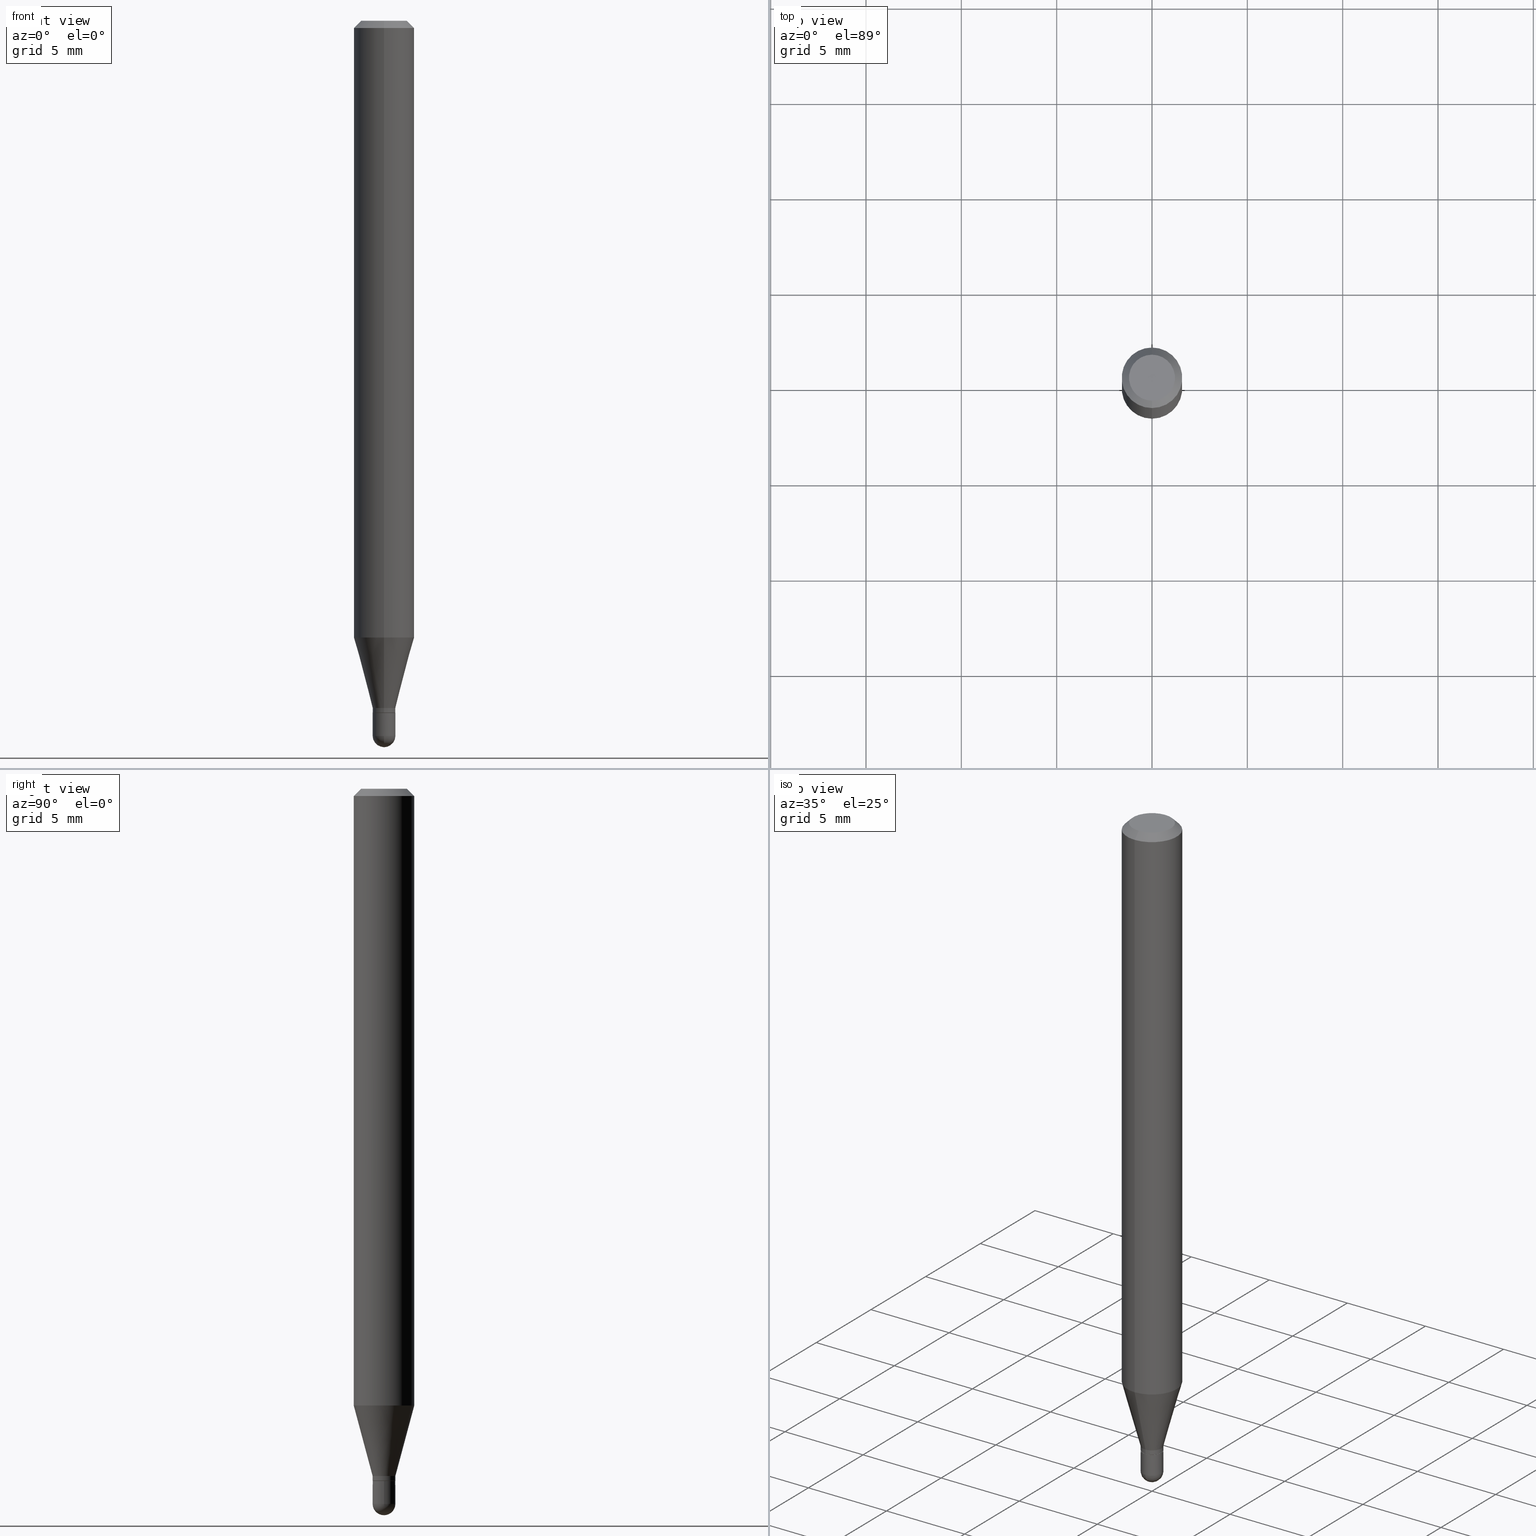
[diagram: canonical four-view strip — front | top / right | iso, engineering-drawing reading convention]
A machine part, canonical four-view strip (front | top / right | iso — engineering-drawing reading convention). The complete STEP part file that produces these views, byte-faithful:
ISO-10303-21;
HEADER;
FILE_DESCRIPTION (( 'STEP AP203' ),
    '1' );
FILE_NAME ('02510.STEP',
    '2024-03-07T20:10:09',
    ( '' ),
    ( '' ),
    'SwSTEP 2.0',
    'SolidWorks 2023',
    '' );
FILE_SCHEMA (( 'CONFIG_CONTROL_DESIGN' ));
ENDSEC;

DATA;
#1 = CARTESIAN_POINT ( 'NONE',  ( 3.494567961384858220E-29, -4.989336804123248668E-15, -1.429000000000000270 ) ) ;
#2 = CONICAL_SURFACE ( 'NONE', #488, 0.06250000000000000000, 0.7853981633974483900 ) ;
#3 = LOCAL_TIME ( 15, 10, 9.000000000000000000, #262 ) ;
#4 = CARTESIAN_POINT ( 'NONE',  ( 3.494567961384858220E-29, -4.989336804123248668E-15, -1.429000000000000270 ) ) ;
#5 = LINE ( 'NONE', #370, #29 ) ;
#6 = DIRECTION ( 'NONE',  ( -6.982962677686266711E-15, -1.000000000000000000, 3.491488316391355955E-15 ) ) ;
#7 = CYLINDRICAL_SURFACE ( 'NONE', #269, 0.02349999999999992373 ) ;
#8 = ORIENTED_EDGE ( 'NONE', *, *, #299, .F. ) ;
#9 = DIRECTION ( 'NONE',  ( -6.982962677686265922E-15, -1.000000000000000000, 3.491488316391355561E-15 ) ) ;
#10 = VERTEX_POINT ( 'NONE', #434 ) ;
#11 = PRODUCT ( '02510', '02510', '', ( #279 ) ) ;
#12 = VERTEX_POINT ( 'NONE', #70 ) ;
#13 = CARTESIAN_POINT ( 'NONE',  ( 0.02350000000000000352, -5.153426456132483639E-15, -1.429000000000000270 ) ) ;
#14 = ORIENTED_EDGE ( 'NONE', *, *, #338, .F. ) ;
#15 = DATE_AND_TIME ( #196, #472 ) ;
#16 = ORIENTED_EDGE ( 'NONE', *, *, #120, .T. ) ;
#17 = FACE_OUTER_BOUND ( 'NONE', #178, .T. ) ;
#18 = AXIS2_PLACEMENT_3D ( 'NONE', #425, #57, #349 ) ;
#19 = ORGANIZATION ( 'UNSPECIFIED', 'UNSPECIFIED', '' ) ;
#20 = DATE_AND_TIME ( #321, #248 ) ;
#21 = ORIENTED_EDGE ( 'NONE', *, *, #40, .F. ) ;
#22 = DIRECTION ( 'NONE',  ( -2.445463933789263379E-29, 3.491488316391355561E-15, 1.000000000000000000 ) ) ;
#23 = ORIENTED_EDGE ( 'NONE', *, *, #301, .F. ) ;
#24 = ORIENTED_EDGE ( 'NONE', *, *, #41, .F. ) ;
#25 = ORIENTED_EDGE ( 'NONE', *, *, #244, .T. ) ;
#26 = SPHERICAL_SURFACE ( 'NONE', #72, 0.02350000000000008679 ) ;
#27 = AXIS2_PLACEMENT_3D ( 'NONE', #334, #444, #42 ) ;
#28 = CC_DESIGN_PERSON_AND_ORGANIZATION_ASSIGNMENT ( #157, #220, ( #82 ) ) ;
#29 = VECTOR ( 'NONE', #366, 39.37007874015748143 ) ;
#30 = EDGE_LOOP ( 'NONE', ( #431, #331 ) ) ;
#31 = FACE_OUTER_BOUND ( 'NONE', #197, .T. ) ;
#32 = APPLICATION_PROTOCOL_DEFINITION ( 'international standard', 'config_control_design', 1994, #372 ) ;
#33 = VERTEX_POINT ( 'NONE', #394 ) ;
#34 = FACE_OUTER_BOUND ( 'NONE', #509, .T. ) ;
#35 = PERSON_AND_ORGANIZATION ( #463, #19 ) ;
#36 = PERSON_AND_ORGANIZATION ( #463, #19 ) ;
#37 = AXIS2_PLACEMENT_3D ( 'NONE', #442, #413, #484 ) ;
#38 = AXIS2_PLACEMENT_3D ( 'NONE', #206, #88, #9 ) ;
#39 = APPROVAL_PERSON_ORGANIZATION ( #36, #354, #397 ) ;
#40 = EDGE_CURVE ( 'NONE', #33, #274, #79, .T. ) ;
#41 = EDGE_CURVE ( 'NONE', #109, #61, #330, .T. ) ;
#42 = DIRECTION ( 'NONE',  ( -6.982962677686265133E-15, -1.000000000000000000, 0.000000000000000000 ) ) ;
#43 = VECTOR ( 'NONE', #125, 39.37007874015748143 ) ;
#44 = CARTESIAN_POINT ( 'NONE',  ( -3.773273898774340269E-16, -0.04749999999999999362, -1.623009212500302985E-16 ) ) ;
#45 = DIRECTION ( 'NONE',  ( -2.445463933789263379E-29, 3.491488316391355561E-15, 1.000000000000000000 ) ) ;
#46 = DIRECTION ( 'NONE',  ( -2.445463933789262819E-29, 3.491488316391355955E-15, 1.000000000000000000 ) ) ;
#47 = CARTESIAN_POINT ( 'NONE',  ( 3.494574924038560717E-29, -4.989326833206855992E-15, -1.429000000000000270 ) ) ;
#48 = VERTEX_POINT ( 'NONE', #44 ) ;
#49 = CARTESIAN_POINT ( 'NONE',  ( 4.364351673553919652E-16, 0.06249999999999995143, -0.01500000000000054588 ) ) ;
#50 = DIRECTION ( 'NONE',  ( -2.445463933789263379E-29, 3.491488316391355561E-15, 1.000000000000000000 ) ) ;
#51 = CIRCLE ( 'NONE', #460, 0.02350000000000000352 ) ;
#52 = PRODUCT_DEFINITION ( 'UNKNOWN', '', #82, #160 ) ;
#53 = CYLINDRICAL_SURFACE ( 'NONE', #87, 0.02349999999999992373 ) ;
#54 = ORIENTED_EDGE ( 'NONE', *, *, #376, .T. ) ;
#55 = EDGE_LOOP ( 'NONE', ( #385, #189, #273, #217 ) ) ;
#56 = PERSON_AND_ORGANIZATION_ROLE ( 'classification_officer' ) ;
#57 = DIRECTION ( 'NONE',  ( 2.445463933789262819E-29, -3.491488316391355955E-15, -1.000000000000000000 ) ) ;
#58 = CARTESIAN_POINT ( 'NONE',  ( 3.610734692332355557E-29, -5.155172196801905931E-15, -1.476500000000000590 ) ) ;
#60 = CALENDAR_DATE ( 2024, 7, 3 ) ;
#59 = APPROVAL ( #455, 'UNSPECIFIED' ) ;
#61 = VERTEX_POINT ( 'NONE', #483 ) ;
#62 = LINE ( 'NONE', #106, #351 ) ;
#63 = VECTOR ( 'NONE', #443, 39.37007874015748143 ) ;
#64 = FACE_OUTER_BOUND ( 'NONE', #395, .T. ) ;
#65 = DIRECTION ( 'NONE',  ( -4.851104656540964275E-15, -0.7071067811865500152, -0.7071067811865450192 ) ) ;
#66 = ORIENTED_EDGE ( 'NONE', *, *, #320, .F. ) ;
#67 = CARTESIAN_POINT ( 'NONE',  ( 0.02350000000000000352, -5.236349137930008608E-15, -1.476500000000000590 ) ) ;
#68 = ORIENTED_EDGE ( 'NONE', *, *, #295, .F. ) ;
#69 = EDGE_LOOP ( 'NONE', ( #66, #75, #16, #68 ) ) ;
#70 = CARTESIAN_POINT ( 'NONE',  ( -4.364351673553912750E-16, -0.06250000000000005551, -0.01500000000000011047 ) ) ;
#71 = VECTOR ( 'NONE', #89, 39.37007874015748143 ) ;
#72 = AXIS2_PLACEMENT_3D ( 'NONE', #242, #359, #326 ) ;
#73 = CC_DESIGN_APPROVAL ( #441, ( #52 ) ) ;
#74 = DIRECTION ( 'NONE',  ( -6.982962677686265922E-15, -1.000000000000000000, 3.491488316391355561E-15 ) ) ;
#75 = ORIENTED_EDGE ( 'NONE', *, *, #393, .T. ) ;
#76 = COORDINATED_UNIVERSAL_TIME_OFFSET ( 5, 0, .BEHIND. ) ;
#77 = EDGE_CURVE ( 'NONE', #389, #12, #337, .T. ) ;
#78 = EDGE_CURVE ( 'NONE', #416, #274, #108, .T. ) ;
#79 = LINE ( 'NONE', #473, #43 ) ;
#80 = CIRCLE ( 'NONE', #37, 0.02349999999999992373 ) ;
#81 = ADVANCED_FACE ( 'NONE', ( #415 ), #191, .T. ) ;
#82 = PRODUCT_DEFINITION_FORMATION_WITH_SPECIFIED_SOURCE ( 'ANY', '', #11, .NOT_KNOWN. ) ;
#83 = CYLINDRICAL_SURFACE ( 'NONE', #324, 0.06250000000000000000 ) ;
#84 = CARTESIAN_POINT ( 'NONE',  ( 3.494574924038560717E-29, -4.989326833206855992E-15, -1.429000000000000270 ) ) ;
#85 = AXIS2_PLACEMENT_3D ( 'NONE', #226, #308, #236 ) ;
#86 = DIRECTION ( 'NONE',  ( -6.982962677686265922E-15, -1.000000000000000000, 0.000000000000000000 ) ) ;
#87 = AXIS2_PLACEMENT_3D ( 'NONE', #145, #254, #454 ) ;
#88 = DIRECTION ( 'NONE',  ( -2.445463933789263379E-29, 3.491488316391355561E-15, 1.000000000000000000 ) ) ;
#89 = DIRECTION ( 'NONE',  ( -2.445463933789263099E-29, 3.491488316391355955E-15, 1.000000000000000000 ) ) ;
#90 = CARTESIAN_POINT ( 'NONE',  ( 0.000000000000000000, 0.000000000000000000, 0.000000000000000000 ) ) ;
#91 = CARTESIAN_POINT ( 'NONE',  ( 3.470113322046965911E-29, -4.954421920959333944E-15, -1.419000000000000261 ) ) ;
#92 = DIRECTION ( 'NONE',  ( -2.445463933789263379E-29, 3.491488316391355561E-15, 1.000000000000000000 ) ) ;
#93 = ORIENTED_EDGE ( 'NONE', *, *, #481, .F. ) ;
#94 = VERTEX_POINT ( 'NONE', #219 ) ;
#95 = CARTESIAN_POINT ( 'NONE',  ( -0.02350000000000000352, -4.905271972100756875E-15, -1.476500000000000590 ) ) ;
#96 = CIRCLE ( 'NONE', #235, 0.06250000000000000000 ) ;
#97 = ORIENTED_EDGE ( 'NONE', *, *, #120, .F. ) ;
#98 = CARTESIAN_POINT ( 'NONE',  ( 3.493345229417964277E-29, -4.987591059965052734E-15, -1.428500000000000325 ) ) ;
#99 = PERSON_AND_ORGANIZATION ( #463, #19 ) ;
#100 = ORIENTED_EDGE ( 'NONE', *, *, #200, .F. ) ;
#101 = APPROVAL_ROLE ( '' ) ;
#102 = ORIENTED_EDGE ( 'NONE', *, *, #107, .F. ) ;
#103 = DIRECTION ( 'NONE',  ( 1.000000000000000000, -6.982962677686269866E-15, 0.000000000000000000 ) ) ;
#104 = ORIENTED_EDGE ( 'NONE', *, *, #376, .F. ) ;
#105 = DIRECTION ( 'NONE',  ( -2.445468806185136597E-29, 3.491481338843145583E-15, 1.000000000000000000 ) ) ;
#106 = CARTESIAN_POINT ( 'NONE',  ( 4.440892098500625669E-16, 0.06250000000000000000, -2.182180197744597225E-16 ) ) ;
#107 = EDGE_CURVE ( 'NONE', #266, #457, #316, .T. ) ;
#108 = CIRCLE ( 'NONE', #268, 0.02349999999999992373 ) ;
#109 = VERTEX_POINT ( 'NONE', #13 ) ;
#110 = CIRCLE ( 'NONE', #162, 0.04749999999999999362 ) ;
#111 = VERTEX_POINT ( 'NONE', #95 ) ;
#112 = CARTESIAN_POINT ( 'NONE',  ( -4.287811248607203282E-16, -0.06250000000000005551, -0.01500000000000011047 ) ) ;
#113 =( LENGTH_UNIT ( ) NAMED_UNIT ( * ) SI_UNIT ( $, .METRE. ) );
#114 = AXIS2_PLACEMENT_3D ( 'NONE', #135, #50, #249 ) ;
#115 = DATE_AND_TIME ( #424, #257 ) ;
#116 = VECTOR ( 'NONE', #287, 39.37007874015748143 ) ;
#117 = ORIENTED_EDGE ( 'NONE', *, *, #467, .T. ) ;
#118 = CC_DESIGN_SECURITY_CLASSIFICATION ( #453, ( #82 ) ) ;
#119 = PERSON_AND_ORGANIZATION_ROLE ( 'design_owner' ) ;
#120 = EDGE_CURVE ( 'NONE', #12, #355, #121, .T. ) ;
#121 = CIRCLE ( 'NONE', #445, 0.06250000000000000000 ) ;
#122 = AXIS2_PLACEMENT_3D ( 'NONE', #229, #492, #136 ) ;
#123 = DIRECTION ( 'NONE',  ( 1.000000000000000000, -6.982962677686265922E-15, 4.883557194083112901E-29 ) ) ;
#124 = EDGE_CURVE ( 'NONE', #375, #264, #297, .T. ) ;
#125 = DIRECTION ( 'NONE',  ( -4.937700262164674260E-15, -0.7071067811865632269, 0.7071067811865319186 ) ) ;
#126 = DIRECTION ( 'NONE',  ( -6.982962677686265133E-15, -1.000000000000000000, 0.000000000000000000 ) ) ;
#127 = DIRECTION ( 'NONE',  ( -6.982962677686265133E-15, -1.000000000000000000, 0.000000000000000000 ) ) ;
#128 = DIRECTION ( 'NONE',  ( -6.982962677686266711E-15, -1.000000000000000000, 3.491488316391355561E-15 ) ) ;
#129 = DIRECTION ( 'NONE',  ( -6.982962677686265922E-15, -1.000000000000000000, 3.491488316391355955E-15 ) ) ;
#130 = DIRECTION ( 'NONE',  ( -2.445463933789263379E-29, 3.491488316391355561E-15, 1.000000000000000000 ) ) ;
#131 = CARTESIAN_POINT ( 'NONE',  ( 4.440892098500934804E-16, 0.06249999999999553135, -1.273450018504814762 ) ) ;
#132 = CIRCLE ( 'NONE', #212, 0.06250000000000000000 ) ;
#133 = LINE ( 'NONE', #489, #409 ) ;
#134 = CARTESIAN_POINT ( 'NONE',  ( 1.669775429036576870E-16, 0.02349999999999496936, -1.419000000000000261 ) ) ;
#135 = CARTESIAN_POINT ( 'NONE',  ( 3.470113322046965911E-29, -4.954421920959333944E-15, -1.419000000000000261 ) ) ;
#136 = DIRECTION ( 'NONE',  ( -6.982962677686266711E-15, -1.000000000000000000, 0.000000000000000000 ) ) ;
#137 = ORIENTED_EDGE ( 'NONE', *, *, #258, .F. ) ;
#138 = DIRECTION ( 'NONE',  ( -2.445463933789263099E-29, 3.491488316391355955E-15, 1.000000000000000000 ) ) ;
#139 = CONICAL_SURFACE ( 'NONE', #114, 0.02349999999999992373, 0.2617993877991502960 ) ;
#140 = LINE ( 'NONE', #300, #71 ) ;
#141 = CIRCLE ( 'NONE', #396, 0.06250000000000000000 ) ;
#142 = DATE_TIME_ROLE ( 'classification_date' ) ;
#143 = ORIENTED_EDGE ( 'NONE', *, *, #146, .T. ) ;
#144 = FACE_OUTER_BOUND ( 'NONE', #429, .T. ) ;
#145 = CARTESIAN_POINT ( 'NONE',  ( 0.000000000000000000, 0.000000000000000000, 0.000000000000000000 ) ) ;
#146 = EDGE_CURVE ( 'NONE', #416, #457, #140, .T. ) ;
#147 = DIRECTION ( 'NONE',  ( 0.000000000000000000, 0.000000000000000000, 1.000000000000000000 ) ) ;
#148 = ORIENTED_EDGE ( 'NONE', *, *, #252, .T. ) ;
#149 = CARTESIAN_POINT ( 'NONE',  ( 0.000000000000000000, 0.000000000000000000, 0.000000000000000000 ) ) ;
#150 = ORIENTED_EDGE ( 'NONE', *, *, #467, .F. ) ;
#151 = DIRECTION ( 'NONE',  ( 1.000000000000000000, -6.982962677686269866E-15, 0.000000000000000000 ) ) ;
#152 = CARTESIAN_POINT ( 'NONE',  ( 1.640996229256622083E-16, 0.02349999999999501099, -1.429000000000000270 ) ) ;
#153 = ORIENTED_EDGE ( 'NONE', *, *, #77, .F. ) ;
#154 = LINE ( 'NONE', #188, #452 ) ;
#155 = DIRECTION ( 'NONE',  ( 1.000000000000000000, -6.982962677686265922E-15, 4.876176775795935793E-29 ) ) ;
#156 = EDGE_CURVE ( 'NONE', #33, #10, #420, .T. ) ;
#157 = PERSON_AND_ORGANIZATION ( #463, #19 ) ;
#158 = AXIS2_PLACEMENT_3D ( 'NONE', #84, #480, #286 ) ;
#159 = APPROVAL_DATE_TIME ( #20, #354 ) ;
#160 = DESIGN_CONTEXT ( 'detailed design', #372, 'design' ) ;
#161 = CLOSED_SHELL ( 'NONE', ( #339, #166, #81, #282, #272, #172, #294, #216, #204, #267, #211, #414 ) ) ;
#162 = AXIS2_PLACEMENT_3D ( 'NONE', #412, #368, #6 ) ;
#163 = LINE ( 'NONE', #448, #201 ) ;
#164 = FACE_OUTER_BOUND ( 'NONE', #184, .T. ) ;
#165 = FACE_OUTER_BOUND ( 'NONE', #350, .T. ) ;
#166 = ADVANCED_FACE ( 'NONE', ( #253 ), #255, .T. ) ;
#167 = DIRECTION ( 'NONE',  ( 1.000000000000000000, -6.982962677686269866E-15, 0.000000000000000000 ) ) ;
#168 = LINE ( 'NONE', #134, #116 ) ;
#169 = CONICAL_SURFACE ( 'NONE', #439, 0.02299999999999999961, 0.7853981633974739252 ) ;
#170 = ORIENTED_EDGE ( 'NONE', *, *, #338, .T. ) ;
#171 = DIRECTION ( 'NONE',  ( -2.445468806185136597E-29, 3.491481338843145583E-15, 1.000000000000000000 ) ) ;
#172 = ADVANCED_FACE ( 'NONE', ( #165 ), #139, .T. ) ;
#173 = EDGE_CURVE ( 'NONE', #375, #94, #198, .T. ) ;
#174 = LENGTH_MEASURE_WITH_UNIT ( LENGTH_MEASURE( 0.02539999999999999897 ), #113 );
#175 = CARTESIAN_POINT ( 'NONE',  ( 1.669775429036573418E-16, 0.02349999999999485834, -1.428500000000000325 ) ) ;
#176 = PLANE ( 'NONE',  #246 ) ;
#177 = DIRECTION ( 'NONE',  ( -2.445463933789263379E-29, 3.491488316391355561E-15, 1.000000000000000000 ) ) ;
#178 = EDGE_LOOP ( 'NONE', ( #100, #462, #388, #225, #8 ) ) ;
#179 = ORIENTED_EDGE ( 'NONE', *, *, #419, .F. ) ;
#180 = DIRECTION ( 'NONE',  ( 1.000000000000000000, -6.982962677686265922E-15, 4.876176775795935793E-29 ) ) ;
#181 = LINE ( 'NONE', #112, #298 ) ;
#182 = CIRCLE ( 'NONE', #435, 0.02299999999999999961 ) ;
#183 = DATE_AND_TIME ( #224, #3 ) ;
#184 = EDGE_LOOP ( 'NONE', ( #213, #104 ) ) ;
#185 = PLANE ( 'NONE',  #18 ) ;
#186 = DIRECTION ( 'NONE',  ( 6.982962677686265922E-15, 1.000000000000000000, -3.483106191921935554E-15 ) ) ;
#187 = CARTESIAN_POINT ( 'NONE',  ( -4.364351673553606573E-16, -0.06250000000000446865, -1.273450018504814096 ) ) ;
#188 = CARTESIAN_POINT ( 'NONE',  ( 0.02350000000000000352, -1.640996229256272766E-16, 1.145901542312045115E-30 ) ) ;
#189 = ORIENTED_EDGE ( 'NONE', *, *, #124, .T. ) ;
#190 = DIRECTION ( 'NONE',  ( -1.000000000000000000, 6.982962677686265922E-15, -4.876176775795935793E-29 ) ) ;
#191 = CONICAL_SURFACE ( 'NONE', #404, 0.06250000000000000000, 0.7853981633974483900 ) ;
#192 = DIRECTION ( 'NONE',  ( -2.445463933789263379E-29, 3.491488316391355561E-15, 1.000000000000000000 ) ) ;
#193 = CIRCLE ( 'NONE', #256, 0.04749999999999999362 ) ;
#194 = APPROVAL_PERSON_ORGANIZATION ( #302, #59, #101 ) ;
#195 = DIRECTION ( 'NONE',  ( -2.445468806185136597E-29, 3.491481338843145583E-15, 1.000000000000000000 ) ) ;
#196 = CALENDAR_DATE ( 2024, 7, 3 ) ;
#197 = EDGE_LOOP ( 'NONE', ( #260, #343, #500, #277 ) ) ;
#198 = CIRCLE ( 'NONE', #469, 0.02350000000000008679 ) ;
#199 = PERSON_AND_ORGANIZATION_ROLE ( 'creator' ) ;
#200 = EDGE_CURVE ( 'NONE', #111, #61, #406, .T. ) ;
#201 = VECTOR ( 'NONE', #209, 39.37007874015748143 ) ;
#202 = DIRECTION ( 'NONE',  ( -2.445468806185136597E-29, 3.491481338843145583E-15, 1.000000000000000000 ) ) ;
#203 = ADVANCED_FACE ( 'NONE', ( #218 ), #176, .F. ) ;
#204 = ADVANCED_FACE ( 'NONE', ( #261 ), #185, .F. ) ;
#205 = ADVANCED_FACE ( 'NONE', ( #17 ), #344, .T. ) ;
#206 = CARTESIAN_POINT ( 'NONE',  ( 0.000000000000000000, 0.000000000000000000, 0.000000000000000000 ) ) ;
#207 = MANIFOLD_SOLID_BREP ( 'Body-Move/Copy2[2]', #161 ) ;
#208 = CARTESIAN_POINT ( 'NONE',  ( 3.668195900683975486E-31, -5.237232474587148071E-17, -0.01500000000000032904 ) ) ;
#209 = DIRECTION ( 'NONE',  ( 5.024295867788190974E-15, 0.7071067811865681119, 0.7071067811865270336 ) ) ;
#210 = CARTESIAN_POINT ( 'NONE',  ( 3.114176091736793656E-29, -4.446235861117914708E-15, -1.273450018504814318 ) ) ;
#211 = ADVANCED_FACE ( 'NONE', ( #64 ), #169, .T. ) ;
#212 = AXIS2_PLACEMENT_3D ( 'NONE', #358, #507, #315 ) ;
#213 = ORIENTED_EDGE ( 'NONE', *, *, #156, .F. ) ;
#214 = CC_DESIGN_APPROVAL ( #59, ( #453 ) ) ;
#215 = CARTESIAN_POINT ( 'NONE',  ( 3.608725051552783518E-29, -5.158050116779901582E-15, -1.476500000000000146 ) ) ;
#216 = ADVANCED_FACE ( 'NONE', ( #144 ), #2, .T. ) ;
#217 = ORIENTED_EDGE ( 'NONE', *, *, #381, .F. ) ;
#218 = FACE_OUTER_BOUND ( 'NONE', #30, .T. ) ;
#219 = CARTESIAN_POINT ( 'NONE',  ( -1.640996229255914574E-16, -0.02350000000000520076, -1.476500000000000590 ) ) ;
#220 = PERSON_AND_ORGANIZATION_ROLE ( 'design_supplier' ) ;
#221 = ORIENTED_EDGE ( 'NONE', *, *, #301, .T. ) ;
#222 = VERTEX_POINT ( 'NONE', #505 ) ;
#223 = MANIFOLD_SOLID_BREP ( 'Body-Move/Copy2[1]', #486 ) ;
#224 = CALENDAR_DATE ( 2024, 7, 3 ) ;
#225 = ORIENTED_EDGE ( 'NONE', *, *, #481, .T. ) ;
#226 = CARTESIAN_POINT ( 'NONE',  ( 3.608725051552783518E-29, -5.158050116779901582E-15, -1.476500000000000146 ) ) ;
#227 = AXIS2_PLACEMENT_3D ( 'NONE', #283, #202, #103 ) ;
#228 = DIRECTION ( 'NONE',  ( 1.000000000000000000, -6.982962677686269866E-15, 0.000000000000000000 ) ) ;
#229 = CARTESIAN_POINT ( 'NONE',  ( 3.470113322046965911E-29, -4.954421920959333944E-15, -1.419000000000000261 ) ) ;
#230 = EDGE_LOOP ( 'NONE', ( #465, #427, #150, #386 ) ) ;
#231 = CARTESIAN_POINT ( 'NONE',  ( 3.668195900683975486E-31, -5.237232474587148071E-17, -0.01500000000000032904 ) ) ;
#232 =( NAMED_UNIT ( * ) PLANE_ANGLE_UNIT ( ) SI_UNIT ( $, .RADIAN. ) );
#233 = ORIENTED_EDGE ( 'NONE', *, *, #40, .T. ) ;
#234 = ORIENTED_EDGE ( 'NONE', *, *, #293, .F. ) ;
#235 = AXIS2_PLACEMENT_3D ( 'NONE', #482, #92, #251 ) ;
#236 = DIRECTION ( 'NONE',  ( 7.105427357601001070E-15, 1.000000000000000000, 0.000000000000000000 ) ) ;
#237 = ORIENTED_EDGE ( 'NONE', *, *, #293, .T. ) ;
#238 = DIRECTION ( 'NONE',  ( 1.000000000000000000, 0.000000000000000000, 0.000000000000000000 ) ) ;
#239 = ORIENTED_EDGE ( 'NONE', *, *, #243, .T. ) ;
#240 = COORDINATED_UNIVERSAL_TIME_OFFSET ( 5, 0, .BEHIND. ) ;
#241 = DIRECTION ( 'NONE',  ( -2.445463933789263379E-29, 3.491488316391355561E-15, 1.000000000000000000 ) ) ;
#242 = CARTESIAN_POINT ( 'NONE',  ( 3.608725051552783518E-29, -5.158050116779901582E-15, -1.476500000000000146 ) ) ;
#243 = EDGE_CURVE ( 'NONE', #353, #355, #62, .T. ) ;
#244 = EDGE_CURVE ( 'NONE', #436, #264, #51, .T. ) ;
#245 = FACE_OUTER_BOUND ( 'NONE', #422, .T. ) ;
#246 = AXIS2_PLACEMENT_3D ( 'NONE', #152, #464, #190 ) ;
#247 =( GEOMETRIC_REPRESENTATION_CONTEXT ( 3 ) GLOBAL_UNCERTAINTY_ASSIGNED_CONTEXT ( ( #265 ) ) GLOBAL_UNIT_ASSIGNED_CONTEXT ( ( #336, #232, #319 ) ) REPRESENTATION_CONTEXT ( 'NONE', 'WORKASPACE' ) );
#248 = LOCAL_TIME ( 15, 10, 9.000000000000000000, #76 ) ;
#249 = DIRECTION ( 'NONE',  ( -6.982962677686266711E-15, -1.000000000000000000, 0.000000000000000000 ) ) ;
#250 = CARTESIAN_POINT ( 'NONE',  ( 4.440892098500938748E-16, 0.06249999999999995143, -0.01500000000000054588 ) ) ;
#251 = DIRECTION ( 'NONE',  ( -6.982962677686265922E-15, -1.000000000000000000, 3.483106191921935554E-15 ) ) ;
#252 = EDGE_CURVE ( 'NONE', #266, #389, #5, .T. ) ;
#253 = FACE_OUTER_BOUND ( 'NONE', #346, .T. ) ;
#254 = DIRECTION ( 'NONE',  ( -2.445463933789263379E-29, 3.491488316391355561E-15, 1.000000000000000000 ) ) ;
#255 = CONICAL_SURFACE ( 'NONE', #27, 0.02299999999999999961, 0.7853981633974739252 ) ;
#256 = AXIS2_PLACEMENT_3D ( 'NONE', #471, #22, #309 ) ;
#257 = LOCAL_TIME ( 15, 10, 9.000000000000000000, #360 ) ;
#258 = EDGE_CURVE ( 'NONE', #10, #416, #163, .T. ) ;
#259 = APPLICATION_PROTOCOL_DEFINITION ( 'international standard', 'config_control_design', 1994, #357 ) ;
#260 = ORIENTED_EDGE ( 'NONE', *, *, #146, .F. ) ;
#261 = FACE_OUTER_BOUND ( 'NONE', #278, .T. ) ;
#262 = COORDINATED_UNIVERSAL_TIME_OFFSET ( 5, 0, .BEHIND. ) ;
#263 = ADVANCED_FACE ( 'NONE', ( #245 ), #477, .T. ) ;
#264 = VERTEX_POINT ( 'NONE', #281 ) ;
#265 = UNCERTAINTY_MEASURE_WITH_UNIT (LENGTH_MEASURE( 1.000000000000000082E-05 ), #336, 'distance_accuracy_value', 'NONE');
#266 = VERTEX_POINT ( 'NONE', #411 ) ;
#267 = ADVANCED_FACE ( 'NONE', ( #164 ), #440, .F. ) ;
#268 = AXIS2_PLACEMENT_3D ( 'NONE', #98, #192, #367 ) ;
#269 = AXIS2_PLACEMENT_3D ( 'NONE', #90, #45, #128 ) ;
#270 = DIRECTION ( 'NONE',  ( -2.445463933789263099E-29, 3.491488316391355955E-15, 1.000000000000000000 ) ) ;
#271 = AXIS2_PLACEMENT_3D ( 'NONE', #407, #123, #86 ) ;
#272 = ADVANCED_FACE ( 'NONE', ( #288 ), #384, .T. ) ;
#273 = ORIENTED_EDGE ( 'NONE', *, *, #244, .F. ) ;
#274 = VERTEX_POINT ( 'NONE', #284 ) ;
#275 = DIRECTION ( 'NONE',  ( -6.982962677686265133E-15, -1.000000000000000000, 0.000000000000000000 ) ) ;
#276 = ORIENTED_EDGE ( 'NONE', *, *, #295, .T. ) ;
#277 = ORIENTED_EDGE ( 'NONE', *, *, #449, .F. ) ;
#278 = EDGE_LOOP ( 'NONE', ( #392, #433 ) ) ;
#279 = MECHANICAL_CONTEXT ( 'NONE', #357, 'mechanical' ) ;
#280 = AXIS2_PLACEMENT_3D ( 'NONE', #149, #458, #180 ) ;
#281 = CARTESIAN_POINT ( 'NONE',  ( 1.669775429036599549E-16, 0.02349999999999488956, -1.476500000000000590 ) ) ;
#282 = ADVANCED_FACE ( 'NONE', ( #328 ), #83, .T. ) ;
#283 = CARTESIAN_POINT ( 'NONE',  ( 3.610734692332355557E-29, -5.155172196801905931E-15, -1.476500000000000590 ) ) ;
#284 = CARTESIAN_POINT ( 'NONE',  ( -1.640996229255923448E-16, -0.02350000000000499259, -1.428500000000000325 ) ) ;
#285 = CC_DESIGN_PERSON_AND_ORGANIZATION_ASSIGNMENT ( #314, #56, ( #453 ) ) ;
#286 = DIRECTION ( 'NONE',  ( 1.000000000000000000, -6.982962677686269866E-15, 0.000000000000000000 ) ) ;
#287 = DIRECTION ( 'NONE',  ( 1.839019923739601104E-15, 0.2588190451025250693, 0.9659258262890670910 ) ) ;
#288 = FACE_OUTER_BOUND ( 'NONE', #230, .T. ) ;
#289 = LINE ( 'NONE', #49, #63 ) ;
#290 = DIRECTION ( 'NONE',  ( -2.445463933789263379E-29, 3.491488316391355561E-15, 1.000000000000000000 ) ) ;
#291 = AXIS2_PLACEMENT_3D ( 'NONE', #387, #432, #352 ) ;
#292 = APPROVAL_PERSON_ORGANIZATION ( #426, #441, #496 ) ;
#293 = EDGE_CURVE ( 'NONE', #355, #12, #96, .T. ) ;
#294 = ADVANCED_FACE ( 'NONE', ( #329 ), #418, .T. ) ;
#295 = EDGE_CURVE ( 'NONE', #222, #355, #289, .T. ) ;
#296 = DIRECTION ( 'NONE',  ( -1.000000000000000000, 6.982962677686265922E-15, -4.883557194083112340E-29 ) ) ;
#297 = CIRCLE ( 'NONE', #85, 0.02350000000000008679 ) ;
#298 = VECTOR ( 'NONE', #65, 39.37007874015748143 ) ;
#299 = EDGE_CURVE ( 'NONE', #61, #109, #510, .T. ) ;
#300 = CARTESIAN_POINT ( 'NONE',  ( 1.669775429036229771E-16, 0.02349999999999992373, -8.204997543519659180E-17 ) ) ;
#301 = EDGE_CURVE ( 'NONE', #353, #389, #141, .T. ) ;
#302 = PERSON_AND_ORGANIZATION ( #463, #19 ) ;
#303 = ORIENTED_EDGE ( 'NONE', *, *, #449, .T. ) ;
#304 = DIRECTION ( 'NONE',  ( -2.445468806185136877E-29, 3.491481338843145188E-15, 1.000000000000000000 ) ) ;
#305 = SECURITY_CLASSIFICATION_LEVEL ( 'unclassified' ) ;
#306 = ORIENTED_EDGE ( 'NONE', *, *, #258, .T. ) ;
#307 = EDGE_LOOP ( 'NONE', ( #170, #143, #102, #497 ) ) ;
#308 = DIRECTION ( 'NONE',  ( 1.000000000000000000, -7.105427357601001070E-15, 4.926315508542082329E-29 ) ) ;
#309 = DIRECTION ( 'NONE',  ( -6.982962677686266711E-15, -1.000000000000000000, 3.491488316391355955E-15 ) ) ;
#310 = ORIENTED_EDGE ( 'NONE', *, *, #393, .F. ) ;
#311 = AXIS2_PLACEMENT_3D ( 'NONE', #91, #241, #417 ) ;
#312 = DIRECTION ( 'NONE',  ( -2.445463933789263379E-29, 3.491488316391355561E-15, 1.000000000000000000 ) ) ;
#313 = ORIENTED_EDGE ( 'NONE', *, *, #200, .T. ) ;
#314 = PERSON_AND_ORGANIZATION ( #463, #19 ) ;
#315 = DIRECTION ( 'NONE',  ( -6.982962677686265922E-15, -1.000000000000000000, 4.370956789862821150E-15 ) ) ;
#316 = CIRCLE ( 'NONE', #340, 0.02349999999999992373 ) ;
#317 = CIRCLE ( 'NONE', #227, 0.02350000000000000352 ) ;
#318 = LOCAL_TIME ( 15, 10, 9.000000000000000000, #240 ) ;
#319 =( NAMED_UNIT ( * ) SI_UNIT ( $, .STERADIAN. ) SOLID_ANGLE_UNIT ( ) );
#320 = EDGE_CURVE ( 'NONE', #48, #222, #110, .T. ) ;
#321 = CALENDAR_DATE ( 2024, 7, 3 ) ;
#322 = EDGE_CURVE ( 'NONE', #274, #266, #133, .T. ) ;
#323 = ADVANCED_BREP_SHAPE_REPRESENTATION ( '02510', ( #223, #207, #430 ), #247 ) ;
#324 = AXIS2_PLACEMENT_3D ( 'NONE', #405, #485, #74 ) ;
#325 = CARTESIAN_POINT ( 'NONE',  ( 3.494567961384858220E-29, -4.989336804123248668E-15, -1.429000000000000270 ) ) ;
#326 = DIRECTION ( 'NONE',  ( -6.982962677686265922E-15, -1.000000000000000000, 0.000000000000000000 ) ) ;
#327 = DIRECTION ( 'NONE',  ( -2.445468806185136877E-29, 3.491481338843145188E-15, 1.000000000000000000 ) ) ;
#328 = FACE_OUTER_BOUND ( 'NONE', #348, .T. ) ;
#329 = FACE_OUTER_BOUND ( 'NONE', #459, .T. ) ;
#330 = CIRCLE ( 'NONE', #158, 0.02350000000000000352 ) ;
#331 = ORIENTED_EDGE ( 'NONE', *, *, #299, .T. ) ;
#332 = CIRCLE ( 'NONE', #478, 0.02350000000000000352 ) ;
#333 = ORIENTED_EDGE ( 'NONE', *, *, #156, .T. ) ;
#334 = CARTESIAN_POINT ( 'NONE',  ( 3.494567961384858220E-29, -4.989336804123248668E-15, -1.429000000000000270 ) ) ;
#335 = ORIENTED_EDGE ( 'NONE', *, *, #173, .T. ) ;
#336 =( CONVERSION_BASED_UNIT ( 'INCH', #174 ) LENGTH_UNIT ( ) NAMED_UNIT ( #447 ) );
#337 = LINE ( 'NONE', #493, #408 ) ;
#338 = EDGE_CURVE ( 'NONE', #274, #416, #80, .T. ) ;
#339 = ADVANCED_FACE ( 'NONE', ( #369 ), #7, .T. ) ;
#340 = AXIS2_PLACEMENT_3D ( 'NONE', #499, #503, #378 ) ;
#341 = APPROVAL_STATUS ( 'not_yet_approved' ) ;
#342 = AXIS2_PLACEMENT_3D ( 'NONE', #325, #46, #129 ) ;
#343 = ORIENTED_EDGE ( 'NONE', *, *, #78, .T. ) ;
#344 = CYLINDRICAL_SURFACE ( 'NONE', #280, 0.02350000000000000352 ) ;
#345 = CC_DESIGN_DATE_AND_TIME_ASSIGNMENT ( #115, #508, ( #52 ) ) ;
#346 = EDGE_LOOP ( 'NONE', ( #333, #306, #14, #21 ) ) ;
#347 = COORDINATED_UNIVERSAL_TIME_OFFSET ( 5, 0, .BEHIND. ) ;
#348 = EDGE_LOOP ( 'NONE', ( #117, #239, #97, #153 ) ) ;
#349 = DIRECTION ( 'NONE',  ( 6.982962677686265922E-15, 1.000000000000000000, -3.491488316391355955E-15 ) ) ;
#350 = EDGE_LOOP ( 'NONE', ( #451, #303, #148, #23 ) ) ;
#351 = VECTOR ( 'NONE', #270, 39.37007874015748143 ) ;
#352 = DIRECTION ( 'NONE',  ( 1.000000000000000000, -6.982962677686269866E-15, 0.000000000000000000 ) ) ;
#353 = VERTEX_POINT ( 'NONE', #131 ) ;
#354 = APPROVAL ( #341, 'UNSPECIFIED' ) ;
#355 = VERTEX_POINT ( 'NONE', #250 ) ;
#356 = PERSON_AND_ORGANIZATION ( #463, #19 ) ;
#357 = APPLICATION_CONTEXT ( 'configuration controlled 3d designs of mechanical parts and assemblies' ) ;
#358 = CARTESIAN_POINT ( 'NONE',  ( 3.114176091736793656E-29, -4.446235861117914708E-15, -1.273450018504814318 ) ) ;
#359 = DIRECTION ( 'NONE',  ( 1.000000000000000000, -6.982962677686265922E-15, 4.883557194083112901E-29 ) ) ;
#360 = COORDINATED_UNIVERSAL_TIME_OFFSET ( 5, 0, .BEHIND. ) ;
#361 = CYLINDRICAL_SURFACE ( 'NONE', #421, 0.02350000000000000352 ) ;
#362 = CC_DESIGN_PERSON_AND_ORGANIZATION_ASSIGNMENT ( #35, #383, ( #52 ) ) ;
#363 = EDGE_CURVE ( 'NONE', #457, #353, #168, .T. ) ;
#364 = CARTESIAN_POINT ( 'NONE',  ( -0.02350000000000000352, 1.669775429036235687E-16, -1.155949746209903035E-30 ) ) ;
#365 = VECTOR ( 'NONE', #327, 39.37007874015748143 ) ;
#366 = DIRECTION ( 'NONE',  ( -1.807323732225330928E-15, -0.2588190451025182970, 0.9659258262890689783 ) ) ;
#367 = DIRECTION ( 'NONE',  ( -6.982962677686266711E-15, -1.000000000000000000, 0.000000000000000000 ) ) ;
#368 = DIRECTION ( 'NONE',  ( -2.445463933789263379E-29, 3.491488316391355561E-15, 1.000000000000000000 ) ) ;
#369 = FACE_OUTER_BOUND ( 'NONE', #307, .T. ) ;
#370 = CARTESIAN_POINT ( 'NONE',  ( -1.640996229255920244E-16, -0.02350000000000488157, -1.419000000000000261 ) ) ;
#371 = DIRECTION ( 'NONE',  ( -6.982962677686265133E-15, -1.000000000000000000, 0.000000000000000000 ) ) ;
#372 = APPLICATION_CONTEXT ( 'configuration controlled 3d designs of mechanical parts and assemblies' ) ;
#373 = CIRCLE ( 'NONE', #122, 0.02349999999999992373 ) ;
#374 = CC_DESIGN_APPROVAL ( #354, ( #82 ) ) ;
#375 = VERTEX_POINT ( 'NONE', #438 ) ;
#376 = EDGE_CURVE ( 'NONE', #10, #33, #182, .T. ) ;
#377 = ORIENTED_EDGE ( 'NONE', *, *, #474, .F. ) ;
#378 = DIRECTION ( 'NONE',  ( -6.982962677686266711E-15, -1.000000000000000000, 0.000000000000000000 ) ) ;
#379 = ORIENTED_EDGE ( 'NONE', *, *, #403, .F. ) ;
#381 = EDGE_CURVE ( 'NONE', #94, #436, #317, .T. ) ;
#380 = DATE_AND_TIME ( #60, #318 ) ;
#382 = CARTESIAN_POINT ( 'NONE',  ( 3.668195900683975486E-31, -5.237232474587148071E-17, -0.01500000000000032904 ) ) ;
#383 = PERSON_AND_ORGANIZATION_ROLE ( 'creator' ) ;
#384 = CONICAL_SURFACE ( 'NONE', #311, 0.02349999999999992373, 0.2617993877991502960 ) ;
#385 = ORIENTED_EDGE ( 'NONE', *, *, #173, .F. ) ;
#386 = ORIENTED_EDGE ( 'NONE', *, *, #252, .F. ) ;
#387 = CARTESIAN_POINT ( 'NONE',  ( 3.610734692332355557E-29, -5.155172196801905931E-15, -1.476500000000000590 ) ) ;
#388 = ORIENTED_EDGE ( 'NONE', *, *, #381, .T. ) ;
#389 = VERTEX_POINT ( 'NONE', #187 ) ;
#390 = CARTESIAN_POINT ( 'NONE',  ( 3.610734692332355557E-29, -5.155172196801905931E-15, -1.476500000000000590 ) ) ;
#391 = FACE_OUTER_BOUND ( 'NONE', #55, .T. ) ;
#392 = ORIENTED_EDGE ( 'NONE', *, *, #474, .T. ) ;
#393 = EDGE_CURVE ( 'NONE', #48, #12, #181, .T. ) ;
#394 = CARTESIAN_POINT ( 'NONE',  ( -1.606081415867491651E-16, -0.02300000000000499215, -1.429000000000000270 ) ) ;
#395 = EDGE_LOOP ( 'NONE', ( #137, #54, #233, #466 ) ) ;
#396 = AXIS2_PLACEMENT_3D ( 'NONE', #210, #130, #487 ) ;
#397 = APPROVAL_ROLE ( '' ) ;
#398 = DIRECTION ( 'NONE',  ( 6.982962677686265922E-15, 1.000000000000000000, -3.483106191921935554E-15 ) ) ;
#399 = CARTESIAN_POINT ( 'NONE',  ( 3.055333763768757932E-16, 0.02349999999999496589, -1.419000000000000261 ) ) ;
#400 = APPROVAL_DATE_TIME ( #15, #441 ) ;
#401 = ORIENTED_EDGE ( 'NONE', *, *, #243, .F. ) ;
#402 = ORIENTED_EDGE ( 'NONE', *, *, #403, .T. ) ;
#403 = EDGE_CURVE ( 'NONE', #264, #111, #506, .T. ) ;
#404 = AXIS2_PLACEMENT_3D ( 'NONE', #208, #490, #398 ) ;
#405 = CARTESIAN_POINT ( 'NONE',  ( 0.000000000000000000, 0.000000000000000000, 0.000000000000000000 ) ) ;
#406 = LINE ( 'NONE', #364, #365 ) ;
#407 = CARTESIAN_POINT ( 'NONE',  ( 3.608725051552783518E-29, -5.158050116779901582E-15, -1.476500000000000146 ) ) ;
#408 = VECTOR ( 'NONE', #138, 39.37007874015748143 ) ;
#409 = VECTOR ( 'NONE', #410, 39.37007874015748143 ) ;
#410 = DIRECTION ( 'NONE',  ( -2.445463933789263099E-29, 3.491488316391355955E-15, 1.000000000000000000 ) ) ;
#411 = CARTESIAN_POINT ( 'NONE',  ( -1.640996229255920244E-16, -0.02350000000000488157, -1.419000000000000261 ) ) ;
#412 = CARTESIAN_POINT ( 'NONE',  ( 8.024707151043492803E-45, -1.145720076800158063E-30, -3.281466162786197113E-16 ) ) ;
#413 = DIRECTION ( 'NONE',  ( -2.445463933789263379E-29, 3.491488316391355561E-15, 1.000000000000000000 ) ) ;
#414 = ADVANCED_FACE ( 'NONE', ( #31 ), #53, .T. ) ;
#415 = FACE_OUTER_BOUND ( 'NONE', #69, .T. ) ;
#416 = VERTEX_POINT ( 'NONE', #175 ) ;
#417 = DIRECTION ( 'NONE',  ( -6.982962677686266711E-15, -1.000000000000000000, 0.000000000000000000 ) ) ;
#418 = CYLINDRICAL_SURFACE ( 'NONE', #38, 0.06250000000000000000 ) ;
#419 = EDGE_CURVE ( 'NONE', #111, #94, #332, .T. ) ;
#420 = CIRCLE ( 'NONE', #476, 0.02299999999999999961 ) ;
#421 = AXIS2_PLACEMENT_3D ( 'NONE', #511, #195, #155 ) ;
#422 = EDGE_LOOP ( 'NONE', ( #428, #335, #179, #379 ) ) ;
#423 = CC_DESIGN_PERSON_AND_ORGANIZATION_ASSIGNMENT ( #356, #199, ( #82 ) ) ;
#424 = CALENDAR_DATE ( 2024, 7, 3 ) ;
#425 = CARTESIAN_POINT ( 'NONE',  ( 3.316907271900976096E-16, 0.04749999999999999362, -3.299190031678992684E-16 ) ) ;
#426 = PERSON_AND_ORGANIZATION ( #463, #19 ) ;
#427 = ORIENTED_EDGE ( 'NONE', *, *, #363, .T. ) ;
#428 = ORIENTED_EDGE ( 'NONE', *, *, #124, .F. ) ;
#429 = EDGE_LOOP ( 'NONE', ( #310, #377, #276, #237 ) ) ;
#430 = AXIS2_PLACEMENT_3D ( 'NONE', #437, #147, #238 ) ;
#431 = ORIENTED_EDGE ( 'NONE', *, *, #41, .T. ) ;
#432 = DIRECTION ( 'NONE',  ( -2.445468806185136597E-29, 3.491481338843145583E-15, 1.000000000000000000 ) ) ;
#433 = ORIENTED_EDGE ( 'NONE', *, *, #320, .T. ) ;
#434 = CARTESIAN_POINT ( 'NONE',  ( 1.652011860642579280E-16, 0.02299999999999501055, -1.429000000000000270 ) ) ;
#435 = AXIS2_PLACEMENT_3D ( 'NONE', #1, #479, #126 ) ;
#436 = VERTEX_POINT ( 'NONE', #67 ) ;
#437 = CARTESIAN_POINT ( 'NONE',  ( 0.000000000000000000, 0.000000000000000000, 0.000000000000000000 ) ) ;
#438 = CARTESIAN_POINT ( 'NONE',  ( 3.665188748108348798E-29, -5.241538888231713626E-15, -1.500000000000000444 ) ) ;
#439 = AXIS2_PLACEMENT_3D ( 'NONE', #498, #312, #275 ) ;
#440 = PLANE ( 'NONE',  #342 ) ;
#441 = APPROVAL ( #512, 'UNSPECIFIED' ) ;
#442 = CARTESIAN_POINT ( 'NONE',  ( 3.493345229417964277E-29, -4.987591059965052734E-15, -1.428500000000000325 ) ) ;
#443 = DIRECTION ( 'NONE',  ( 4.937700262164548042E-15, 0.7071067811865451302, -0.7071067811865499042 ) ) ;
#444 = DIRECTION ( 'NONE',  ( -2.445463933789263379E-29, 3.491488316391355561E-15, 1.000000000000000000 ) ) ;
#445 = AXIS2_PLACEMENT_3D ( 'NONE', #382, #177, #494 ) ;
#446 = CC_DESIGN_DATE_AND_TIME_ASSIGNMENT ( #380, #142, ( #453 ) ) ;
#447 = DIMENSIONAL_EXPONENTS ( 1.000000000000000000, 0.000000000000000000, 0.000000000000000000, 0.000000000000000000, 0.000000000000000000, 0.000000000000000000, 0.000000000000000000 ) ;
#448 = CARTESIAN_POINT ( 'NONE',  ( 1.634248292248579471E-16, 0.02299999999999501055, -1.429000000000000270 ) ) ;
#449 = EDGE_CURVE ( 'NONE', #457, #266, #373, .T. ) ;
#450 = CC_DESIGN_PERSON_AND_ORGANIZATION_ASSIGNMENT ( #99, #119, ( #11 ) ) ;
#451 = ORIENTED_EDGE ( 'NONE', *, *, #363, .F. ) ;
#452 = VECTOR ( 'NONE', #304, 39.37007874015748143 ) ;
#453 = SECURITY_CLASSIFICATION ( '', '', #305 ) ;
#454 = DIRECTION ( 'NONE',  ( -6.982962677686266711E-15, -1.000000000000000000, 3.491488316391355561E-15 ) ) ;
#455 = APPROVAL_STATUS ( 'not_yet_approved' ) ;
#456 = DIRECTION ( 'NONE',  ( 2.445463933789263379E-29, -3.491488316391355561E-15, -1.000000000000000000 ) ) ;
#457 = VERTEX_POINT ( 'NONE', #399 ) ;
#458 = DIRECTION ( 'NONE',  ( -2.445468806185136597E-29, 3.491481338843145583E-15, 1.000000000000000000 ) ) ;
#459 = EDGE_LOOP ( 'NONE', ( #401, #221, #491, #234 ) ) ;
#460 = AXIS2_PLACEMENT_3D ( 'NONE', #390, #502, #228 ) ;
#461 = ADVANCED_FACE ( 'NONE', ( #34 ), #361, .T. ) ;
#462 = ORIENTED_EDGE ( 'NONE', *, *, #419, .T. ) ;
#463 = PERSON ( 'UNSPECIFIED', 'UNSPECIFIED', 'UNSPECIFIED', ('UNSPECIFIED'), ('UNSPECIFIED'), ('UNSPECIFIED') ) ;
#464 = DIRECTION ( 'NONE',  ( 2.438088387897960049E-29, -3.491481338843145188E-15, -1.000000000000000000 ) ) ;
#465 = ORIENTED_EDGE ( 'NONE', *, *, #107, .T. ) ;
#466 = ORIENTED_EDGE ( 'NONE', *, *, #78, .F. ) ;
#467 = EDGE_CURVE ( 'NONE', #389, #353, #132, .T. ) ;
#468 = APPROVAL_DATE_TIME ( #183, #59 ) ;
#469 = AXIS2_PLACEMENT_3D ( 'NONE', #215, #296, #127 ) ;
#470 = AXIS2_PLACEMENT_3D ( 'NONE', #47, #171, #167 ) ;
#471 = CARTESIAN_POINT ( 'NONE',  ( 8.024707151043492803E-45, -1.145720076800158063E-30, -3.281466162786197113E-16 ) ) ;
#472 = LOCAL_TIME ( 15, 10, 9.000000000000000000, #347 ) ;
#473 = CARTESIAN_POINT ( 'NONE',  ( -1.606081415867491651E-16, -0.02300000000000499215, -1.429000000000000270 ) ) ;
#474 = EDGE_CURVE ( 'NONE', #222, #48, #193, .T. ) ;
#475 = PRODUCT_RELATED_PRODUCT_CATEGORY ( 'detail', '', ( #11 ) ) ;
#476 = AXIS2_PLACEMENT_3D ( 'NONE', #4, #290, #371 ) ;
#477 = SPHERICAL_SURFACE ( 'NONE', #271, 0.02350000000000008679 ) ;
#478 = AXIS2_PLACEMENT_3D ( 'NONE', #58, #105, #151 ) ;
#479 = DIRECTION ( 'NONE',  ( -2.445463933789263379E-29, 3.491488316391355561E-15, 1.000000000000000000 ) ) ;
#480 = DIRECTION ( 'NONE',  ( -2.445468806185136597E-29, 3.491481338843145583E-15, 1.000000000000000000 ) ) ;
#481 = EDGE_CURVE ( 'NONE', #436, #109, #154, .T. ) ;
#482 = CARTESIAN_POINT ( 'NONE',  ( 3.668195900683975486E-31, -5.237232474587148071E-17, -0.01500000000000032904 ) ) ;
#483 = CARTESIAN_POINT ( 'NONE',  ( -0.02350000000000000352, -4.905271972100756875E-15, -1.429000000000000270 ) ) ;
#484 = DIRECTION ( 'NONE',  ( -6.982962677686266711E-15, -1.000000000000000000, 0.000000000000000000 ) ) ;
#485 = DIRECTION ( 'NONE',  ( -2.445463933789263379E-29, 3.491488316391355561E-15, 1.000000000000000000 ) ) ;
#486 = CLOSED_SHELL ( 'NONE', ( #461, #504, #203, #263, #205 ) ) ;
#487 = DIRECTION ( 'NONE',  ( -6.982962677686265922E-15, -1.000000000000000000, 4.370956789862821150E-15 ) ) ;
#488 = AXIS2_PLACEMENT_3D ( 'NONE', #231, #456, #186 ) ;
#489 = CARTESIAN_POINT ( 'NONE',  ( -1.640996229256267342E-16, -0.02349999999999992373, 8.204997543519659180E-17 ) ) ;
#490 = DIRECTION ( 'NONE',  ( 2.445463933789263379E-29, -3.491488316391355561E-15, -1.000000000000000000 ) ) ;
#491 = ORIENTED_EDGE ( 'NONE', *, *, #77, .T. ) ;
#492 = DIRECTION ( 'NONE',  ( -2.445463933789263379E-29, 3.491488316391355561E-15, 1.000000000000000000 ) ) ;
#493 = CARTESIAN_POINT ( 'NONE',  ( -4.364351673553916201E-16, -0.06250000000000000000, 2.182180197744597225E-16 ) ) ;
#494 = DIRECTION ( 'NONE',  ( -6.982962677686265922E-15, -1.000000000000000000, 3.483106191921935554E-15 ) ) ;
#495 = PRODUCT_DEFINITION_SHAPE ( 'NONE', 'NONE',  #52 ) ;
#496 = APPROVAL_ROLE ( '' ) ;
#497 = ORIENTED_EDGE ( 'NONE', *, *, #322, .F. ) ;
#498 = CARTESIAN_POINT ( 'NONE',  ( 3.494567961384858220E-29, -4.989336804123248668E-15, -1.429000000000000270 ) ) ;
#499 = CARTESIAN_POINT ( 'NONE',  ( 3.470113322046965911E-29, -4.954421920959333944E-15, -1.419000000000000261 ) ) ;
#500 = ORIENTED_EDGE ( 'NONE', *, *, #322, .T. ) ;
#501 = SHAPE_DEFINITION_REPRESENTATION ( #495, #323 ) ;
#502 = DIRECTION ( 'NONE',  ( -2.445468806185136597E-29, 3.491481338843145583E-15, 1.000000000000000000 ) ) ;
#503 = DIRECTION ( 'NONE',  ( -2.445463933789263379E-29, 3.491488316391355561E-15, 1.000000000000000000 ) ) ;
#504 = ADVANCED_FACE ( 'NONE', ( #391 ), #26, .T. ) ;
#505 = CARTESIAN_POINT ( 'NONE',  ( 3.840629472727447874E-16, 0.04749999999999999362, -4.939923113072091241E-16 ) ) ;
#506 = CIRCLE ( 'NONE', #291, 0.02350000000000000352 ) ;
#507 = DIRECTION ( 'NONE',  ( -2.445463933789263379E-29, 3.491488316391355561E-15, 1.000000000000000000 ) ) ;
#508 = DATE_TIME_ROLE ( 'creation_date' ) ;
#509 = EDGE_LOOP ( 'NONE', ( #402, #313, #24, #93, #25 ) ) ;
#510 = CIRCLE ( 'NONE', #470, 0.02350000000000000352 ) ;
#511 = CARTESIAN_POINT ( 'NONE',  ( 0.000000000000000000, 0.000000000000000000, 0.000000000000000000 ) ) ;
#512 = APPROVAL_STATUS ( 'not_yet_approved' ) ;
ENDSEC;
END-ISO-10303-21;
